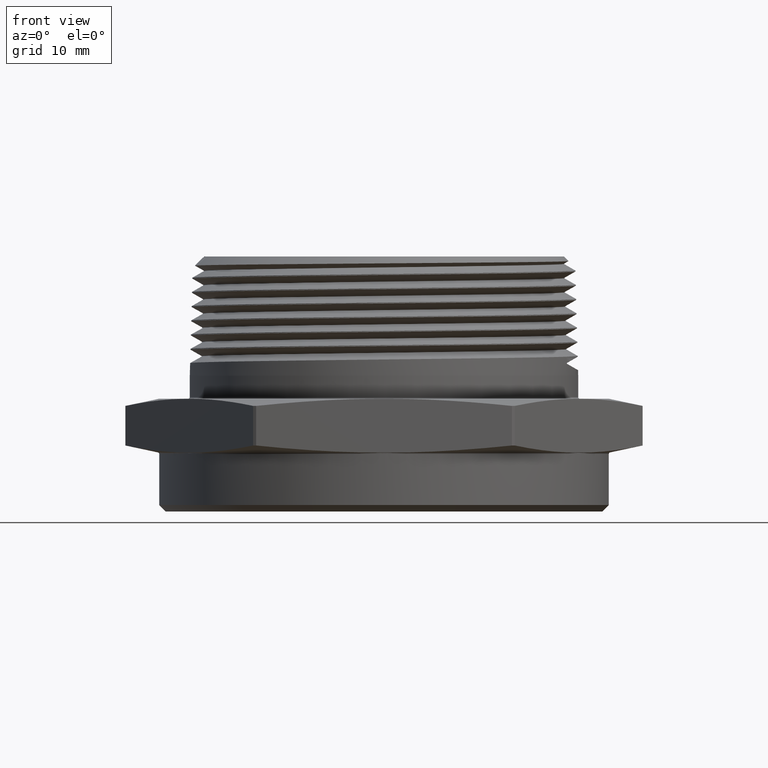
[diagram: clean part render]
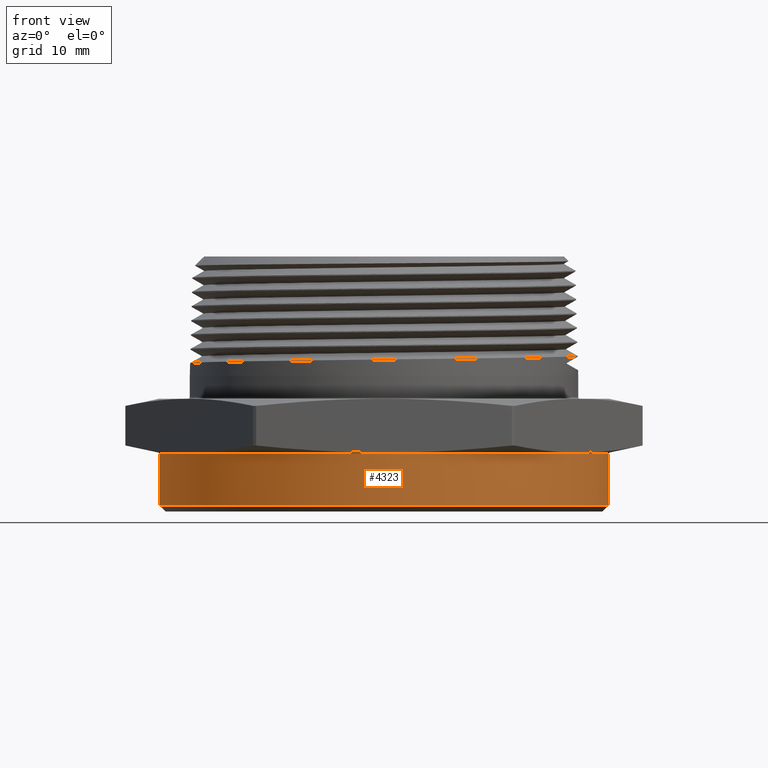
[diagram: same view with one face highlighted and labeled with its STEP entity id]
A machine part, front view. The second image highlights one B-rep face of the part: STEP entity #4323.
In plain terms, the highlighted cylindrical surface (partial cylindrical patch) has radius 34.915 mm, axis along (0, 0, 1).
Its self-contained STEP definition (entity closure, byte-faithful):
#21 = FACE_OUTER_BOUND ( 'NONE', #4262, .T. ) ;
#24 = CYLINDRICAL_SURFACE ( 'NONE', #130, 1.374606299212598500 ) ;
#36 = B_SPLINE_CURVE_WITH_KNOTS ( 'NONE', 3,
 ( #1250, #1245, #1246, #1251, #1252, #1253, #1254, #1255, #1256, #1257, #1258, #1259, #1260, #1261 ),
 .UNSPECIFIED., .F., .F.,
 ( 4, 2, 2, 2, 2, 2, 4 ),
 ( 0.0000000000000000000, 0.001824775632309688000, 0.002737163448464528900, 0.003649551264619370300, 0.004561939080774212100, 0.005474326896929052600, 0.007299102529238725800 ),
 .UNSPECIFIED. ) ;
#37 = B_SPLINE_CURVE_WITH_KNOTS ( 'NONE', 3,
 ( #1782, #1783, #1233, #1234, #1235, #1236, #1237, #1238, #1239, #1240, #1241, #1242, #1243, #1244 ),
 .UNSPECIFIED., .F., .F.,
 ( 4, 2, 2, 2, 2, 2, 4 ),
 ( 0.0000000000000000000, 0.001824775632309680100, 0.002737163448464520200, 0.003649551264619360300, 0.004561939080774200800, 0.005474326896929040400, 0.007299102529238720600 ),
 .UNSPECIFIED. ) ;
#40 = B_SPLINE_CURVE_WITH_KNOTS ( 'NONE', 3,
 ( #1770, #1765, #1766, #1771, #1772, #1773, #1774, #1775, #1776, #1777, #1778, #1779, #1780, #1781 ),
 .UNSPECIFIED., .F., .F.,
 ( 4, 2, 2, 2, 2, 2, 4 ),
 ( 0.0000000000000000000, 0.001824775632309711600, 0.002737163448464564900, 0.003649551264619418400, 0.004561939080774271100, 0.005474326896929124600, 0.007299102529238831600 ),
 .UNSPECIFIED. ) ;
#130 = AXIS2_PLACEMENT_3D ( 'NONE', #3542, #3538, #3539 ) ;
#544 = CARTESIAN_POINT ( 'NONE',  ( -1.112339877869385400, -0.8076153007072592900, -0.008097840331950333800 ) ) ;
#547 = CARTESIAN_POINT ( 'NONE',  ( -0.1432454279628019600, -1.367122242230997200, -0.008097840331950394500 ) ) ;
#548 = CARTESIAN_POINT ( 'NONE',  ( 1.255585305832188600, -0.5595069415237359200, -0.008097840331950483000 ) ) ;
#553 = CARTESIAN_POINT ( 'NONE',  ( 0.1432454279628024900, -1.367122242230997200, -0.008097840331950411800 ) ) ;
#554 = CARTESIAN_POINT ( 'NONE',  ( -1.255585305832187700, -0.5595069415237383700, -0.008097840331950323400 ) ) ;
#562 = CARTESIAN_POINT ( 'NONE',  ( 1.112339877869384000, -0.8076153007072608400, -0.008097840331950472600 ) ) ;
#567 = CARTESIAN_POINT ( 'NONE',  ( -1.374606299212598500, 1.683407204418497500E-016, -0.008097840331950316400 ) ) ;
#578 = CARTESIAN_POINT ( 'NONE',  ( 1.374606299212598500, 0.0000000000000000000, -0.008097840331950489900 ) ) ;
#656 = CARTESIAN_POINT ( 'NONE',  ( 1.374606299212598500, 0.0000000000000000000, -0.3199999999999996200 ) ) ;
#657 = CARTESIAN_POINT ( 'NONE',  ( -1.374606299212598500, 1.683407204418497500E-016, -0.3199999999999996200 ) ) ;
#719 = CARTESIAN_POINT ( 'NONE',  ( -1.374606299212598500, 1.683407204418497500E-016, -0.3599999999999999900 ) ) ;
#720 = DIRECTION ( 'NONE',  ( -0.0000000000000000000, -0.0000000000000000000, 1.000000000000000000 ) ) ;
#746 = CARTESIAN_POINT ( 'NONE',  ( 1.374606299212598500, 0.0000000000000000000, -0.3599999999999999900 ) ) ;
#764 = DIRECTION ( 'NONE',  ( -0.0000000000000000000, -0.0000000000000000000, 1.000000000000000000 ) ) ;
#1161 = EDGE_CURVE ( 'NONE', #2094, #2093, #3355, .T. ) ;
#1162 = EDGE_CURVE ( 'NONE', #1965, #1901, #3353, .T. ) ;
#1163 = EDGE_CURVE ( 'NONE', #1901, #1915, #40, .T. ) ;
#1164 = EDGE_CURVE ( 'NONE', #1915, #1906, #3354, .T. ) ;
#1165 = EDGE_CURVE ( 'NONE', #1906, #1900, #37, .T. ) ;
#1166 = EDGE_CURVE ( 'NONE', #1900, #1896, #3356, .T. ) ;
#1167 = EDGE_CURVE ( 'NONE', #1896, #1907, #36, .T. ) ;
#1168 = EDGE_CURVE ( 'NONE', #1907, #1952, #3345, .T. ) ;
#1233 = CARTESIAN_POINT ( 'NONE',  ( 0.09555873642478267300, -1.371489093672453100, -0.007126066441219824000 ) ) ;
#1234 = CARTESIAN_POINT ( 'NONE',  ( 0.05975381484522660600, -1.373358944897529600, -0.005238497239709032100 ) ) ;
#1235 = CARTESIAN_POINT ( 'NONE',  ( 0.04781350008685645400, -1.373826508893269700, -0.004522194575074515100 ) ) ;
#1236 = CARTESIAN_POINT ( 'NONE',  ( 0.02391101404961605900, -1.374450315848319200, -0.003245618310907626500 ) ) ;
#1237 = CARTESIAN_POINT ( 'NONE',  ( 0.01195552299331429000, -1.374606450950513100, -0.002694132162926977200 ) ) ;
#1238 = CARTESIAN_POINT ( 'NONE',  ( -0.01199039021385703800, -1.374606147253579300, -0.002695124420957601800 ) ) ;
#1239 = CARTESIAN_POINT ( 'NONE',  ( -0.02395869805601228200, -1.374449436218752000, -0.003247932820579544700 ) ) ;
#1240 = CARTESIAN_POINT ( 'NONE',  ( -0.04784984119740117600, -1.373825194350419800, -0.004524368469978929900 ) ) ;
#1241 = CARTESIAN_POINT ( 'NONE',  ( -0.05978392429276650800, -1.373357582736117500, -0.005240182578535711900 ) ) ;
#1242 = CARTESIAN_POINT ( 'NONE',  ( -0.09557097828870882200, -1.371488033215971800, -0.007126515463493990500 ) ) ;
#1243 = CARTESIAN_POINT ( 'NONE',  ( -0.1194063740087768900, -1.369620069696886800, -0.008097840331998040400 ) ) ;
#1244 = CARTESIAN_POINT ( 'NONE',  ( -0.1432454279628019600, -1.367122242230997200, -0.008097840331950394500 ) ) ;
#1245 = CARTESIAN_POINT ( 'NONE',  ( -1.126411498721396900, -0.7882342599985914200, -0.008097840331950321600 ) ) ;
#1246 = CARTESIAN_POINT ( 'NONE',  ( -1.139965027921248500, -0.7685008401336294000, -0.007126066441219675700 ) ) ;
#1247 = CARTESIAN_POINT ( 'NONE',  ( 0.0000000000000000000, 0.0000000000000000000, -0.008097840331950403200 ) ) ;
#1248 = DIRECTION ( 'NONE',  ( -6.274932739761922300E-017, -0.0000000000000000000, -1.000000000000000000 ) ) ;
#1249 = DIRECTION ( 'NONE',  ( -1.000000000000000000, 0.0000000000000000000, 6.288155232086915300E-017 ) ) ;
#1250 = CARTESIAN_POINT ( 'NONE',  ( -1.112339877869385400, -0.8076153007072592900, -0.008097840331950333800 ) ) ;
#1251 = CARTESIAN_POINT ( 'NONE',  ( -1.159486827373240800, -0.7384277940777627100, -0.005238497239709149200 ) ) ;
#1252 = CARTESIAN_POINT ( 'NONE',  ( -1.165861907050631800, -0.7283209601657018000, -0.004522194575074366800 ) ) ;
#1253 = CARTESIAN_POINT ( 'NONE',  ( -1.178353382739382200, -0.7079327035213733900, -0.003245618310907721000 ) ) ;
#1254 = CARTESIAN_POINT ( 'NONE',  ( -1.184466345232455800, -0.6976570121029955800, -0.002694132162925600700 ) ) ;
#1255 = CARTESIAN_POINT ( 'NONE',  ( -1.196439038826781400, -0.6769190911003006800, -0.002695124420955960800 ) ) ;
#1256 = CARTESIAN_POINT ( 'NONE',  ( -1.202287477010644900, -0.6664758769512677500, -0.003247932820579369500 ) ) ;
#1257 = CARTESIAN_POINT ( 'NONE',  ( -1.213692439265257500, -0.6454734191312087000, -0.004524368469979016600 ) ) ;
#1258 = CARTESIAN_POINT ( 'NONE',  ( -1.219254517275850200, -0.6349043941925972500, -0.005240182578535711000 ) ) ;
#1259 = CARTESIAN_POINT ( 'NONE',  ( -1.235528966895741700, -0.6029771215454325900, -0.007126515463493758100 ) ) ;
#1260 = CARTESIAN_POINT ( 'NONE',  ( -1.245828960894905600, -0.5814010815830560300, -0.008097840331997884300 ) ) ;
#1261 = CARTESIAN_POINT ( 'NONE',  ( -1.255585305832187700, -0.5595069415237383700, -0.008097840331950323400 ) ) ;
#1262 = CARTESIAN_POINT ( 'NONE',  ( 0.0000000000000000000, 0.0000000000000000000, -0.008097840331950403200 ) ) ;
#1263 = DIRECTION ( 'NONE',  ( -6.274932739761922300E-017, -0.0000000000000000000, -1.000000000000000000 ) ) ;
#1264 = DIRECTION ( 'NONE',  ( -1.000000000000000000, 0.0000000000000000000, 6.288155232086915300E-017 ) ) ;
#1534 = AXIS2_PLACEMENT_3D ( 'NONE', #1762, #1763, #1764 ) ;
#1535 = AXIS2_PLACEMENT_3D ( 'NONE', #1767, #1768, #1769 ) ;
#1536 = AXIS2_PLACEMENT_3D ( 'NONE', #1784, #1785, #8926 ) ;
#1537 = AXIS2_PLACEMENT_3D ( 'NONE', #1247, #1248, #1249 ) ;
#1538 = AXIS2_PLACEMENT_3D ( 'NONE', #1262, #1263, #1264 ) ;
#1762 = CARTESIAN_POINT ( 'NONE',  ( 0.0000000000000000000, 0.0000000000000000000, -0.3199999999999996200 ) ) ;
#1763 = DIRECTION ( 'NONE',  ( 0.0000000000000000000, 0.0000000000000000000, 1.000000000000000000 ) ) ;
#1764 = DIRECTION ( 'NONE',  ( -1.000000000000000000, 0.0000000000000000000, 0.0000000000000000000 ) ) ;
#1765 = CARTESIAN_POINT ( 'NONE',  ( 1.245836642652707000, -0.5813838430083350100, -0.008097840331950457000 ) ) ;
#1766 = CARTESIAN_POINT ( 'NONE',  ( 1.235523764346031700, -0.6029882535388222400, -0.007126066441219945500 ) ) ;
#1767 = CARTESIAN_POINT ( 'NONE',  ( 0.0000000000000000000, 0.0000000000000000000, -0.008097840331950403200 ) ) ;
#1768 = DIRECTION ( 'NONE',  ( -6.274932739761922300E-017, -0.0000000000000000000, -1.000000000000000000 ) ) ;
#1769 = DIRECTION ( 'NONE',  ( -1.000000000000000000, 0.0000000000000000000, 6.288155232086915300E-017 ) ) ;
#1770 = CARTESIAN_POINT ( 'NONE',  ( 1.255585305832188600, -0.5595069415237359200, -0.008097840331950483000 ) ) ;
#1771 = CARTESIAN_POINT ( 'NONE',  ( 1.219240642218467400, -0.6349311508197664800, -0.005238497239709038200 ) ) ;
#1772 = CARTESIAN_POINT ( 'NONE',  ( 1.213675407137488400, -0.6455055487275674900, -0.004522194575074538600 ) ) ;
#1773 = CARTESIAN_POINT ( 'NONE',  ( 1.202264396788997900, -0.6665176123269454000, -0.003245618310907533700 ) ) ;
#1774 = CARTESIAN_POINT ( 'NONE',  ( 1.196421868225769500, -0.6769494388475182400, -0.002694132162923414900 ) ) ;
#1775 = CARTESIAN_POINT ( 'NONE',  ( 1.184448648612923800, -0.6976870561532791900, -0.002695124420955585600 ) ) ;
#1776 = CARTESIAN_POINT ( 'NONE',  ( 1.178328778954631700, -0.7079735592674841800, -0.003247932820578695500 ) ) ;
#1777 = CARTESIAN_POINT ( 'NONE',  ( 1.165842598067855500, -0.7283517752192114600, -0.004524368469978693900 ) ) ;
#1778 = CARTESIAN_POINT ( 'NONE',  ( 1.159470592983083100, -0.7384531885435217100, -0.005240182578535389200 ) ) ;
#1779 = CARTESIAN_POINT ( 'NONE',  ( 1.139957988607031700, -0.7685109116705400900, -0.007126515463493935000 ) ) ;
#1780 = CARTESIAN_POINT ( 'NONE',  ( 1.126422586886127300, -0.7882189881138316200, -0.008097840331998207000 ) ) ;
#1781 = CARTESIAN_POINT ( 'NONE',  ( 1.112339877869384000, -0.8076153007072608400, -0.008097840331950472600 ) ) ;
#1782 = CARTESIAN_POINT ( 'NONE',  ( 0.1432454279628024900, -1.367122242230997200, -0.008097840331950411800 ) ) ;
#1783 = CARTESIAN_POINT ( 'NONE',  ( 0.1194251439313098900, -1.369618103006927900, -0.008097840331950349400 ) ) ;
#1784 = CARTESIAN_POINT ( 'NONE',  ( 0.0000000000000000000, 0.0000000000000000000, -0.008097840331950403200 ) ) ;
#1785 = DIRECTION ( 'NONE',  ( -6.274932739761922300E-017, -0.0000000000000000000, -1.000000000000000000 ) ) ;
#1844 = ORIENTED_EDGE ( 'NONE', *, *, #4071, .F. ) ;
#1896 = VERTEX_POINT ( 'NONE', #544 ) ;
#1900 = VERTEX_POINT ( 'NONE', #547 ) ;
#1901 = VERTEX_POINT ( 'NONE', #548 ) ;
#1906 = VERTEX_POINT ( 'NONE', #553 ) ;
#1907 = VERTEX_POINT ( 'NONE', #554 ) ;
#1915 = VERTEX_POINT ( 'NONE', #562 ) ;
#1952 = VERTEX_POINT ( 'NONE', #567 ) ;
#1965 = VERTEX_POINT ( 'NONE', #578 ) ;
#2093 = VERTEX_POINT ( 'NONE', #656 ) ;
#2094 = VERTEX_POINT ( 'NONE', #657 ) ;
#2748 = ORIENTED_EDGE ( 'NONE', *, *, #1165, .T. ) ;
#2750 = ORIENTED_EDGE ( 'NONE', *, *, #1166, .T. ) ;
#2752 = ORIENTED_EDGE ( 'NONE', *, *, #1167, .T. ) ;
#2754 = ORIENTED_EDGE ( 'NONE', *, *, #1168, .T. ) ;
#2962 = LINE ( 'NONE', #719, #2964 ) ;
#2963 = LINE ( 'NONE', #746, #2969 ) ;
#2964 = VECTOR ( 'NONE', #720, 39.37007874015748100 ) ;
#2969 = VECTOR ( 'NONE', #764, 39.37007874015748100 ) ;
#3345 = CIRCLE ( 'NONE', #1538, 1.374606299212598500 ) ;
#3353 = CIRCLE ( 'NONE', #1535, 1.374606299212598500 ) ;
#3354 = CIRCLE ( 'NONE', #1536, 1.374606299212598500 ) ;
#3355 = CIRCLE ( 'NONE', #1534, 1.374606299212598500 ) ;
#3356 = CIRCLE ( 'NONE', #1537, 1.374606299212598500 ) ;
#3538 = DIRECTION ( 'NONE',  ( -0.0000000000000000000, -0.0000000000000000000, 1.000000000000000000 ) ) ;
#3539 = DIRECTION ( 'NONE',  ( 1.000000000000000000, 0.0000000000000000000, 0.0000000000000000000 ) ) ;
#3542 = CARTESIAN_POINT ( 'NONE',  ( 0.0000000000000000000, 0.0000000000000000000, -0.3599999999999999900 ) ) ;
#4071 = EDGE_CURVE ( 'NONE', #2094, #1952, #2962, .T. ) ;
#4087 = EDGE_CURVE ( 'NONE', #2093, #1965, #2963, .T. ) ;
#4262 = EDGE_LOOP ( 'NONE', ( #1844, #8935, #8934, #4385, #4386, #4370, #2748, #2750, #2752, #2754 ) ) ;
#4323 = ADVANCED_FACE ( 'NONE', ( #21 ), #24, .T. ) ;
#4370 = ORIENTED_EDGE ( 'NONE', *, *, #1164, .T. ) ;
#4385 = ORIENTED_EDGE ( 'NONE', *, *, #1162, .T. ) ;
#4386 = ORIENTED_EDGE ( 'NONE', *, *, #1163, .T. ) ;
#8926 = DIRECTION ( 'NONE',  ( -1.000000000000000000, 0.0000000000000000000, 6.288155232086915300E-017 ) ) ;
#8934 = ORIENTED_EDGE ( 'NONE', *, *, #4087, .T. ) ;
#8935 = ORIENTED_EDGE ( 'NONE', *, *, #1161, .T. ) ;